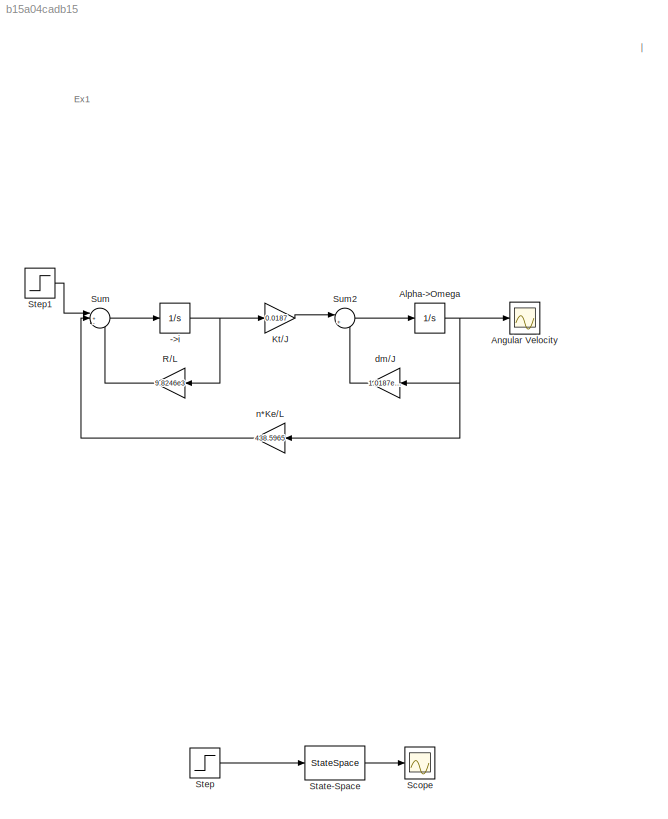
MODEL slx_b15a04cadb15
KIND model
BLOCK [Integrator] ->i
  Ports = [1, 1]
BLOCK [Integrator] Alpha->Omega
  Ports = [1, 1]
BLOCK [Scope] Angular Velocity
  Floating = off
  NumInputPorts = 1
  Ports = [1]
  ShowLegends = off
BLOCK [Gain] Kt//J
  Gain = 0.0187
  OutDataTypeStr = Inherit: Inherit via internal rule
  ParamDataTypeStr = Inherit: Inherit via internal rule
  SaturateOnIntegerOverflow = off
BLOCK [Gain] R//L
  Gain = 9.8246e3
  OutDataTypeStr = Inherit: Inherit via internal rule
  ParamDataTypeStr = Inherit: Inherit via internal rule
  SaturateOnIntegerOverflow = off
BLOCK [Scope] Scope
  Floating = off
  NumInputPorts = 1
  Ports = [1]
  SaveName = ScopeData2
  ShowLegends = off
BLOCK [StateSpace] State-Space
  A = [0,0,-22.4;0,0,0.0187;0,0,0]
  B = [0.2;0;0]
  C = [1,0,0;0,1,0]
  D = [0;0]
  Ports = [1, 1]
  X0 = 0
BLOCK [Step] Step
  SampleTime = 0
BLOCK [Step] Step1
  SampleTime = 0
BLOCK [Sum] Sum
  IconShape = round
  InputSameDT = off
  Inputs = |+--
  OutDataTypeStr = Inherit: Inherit via internal rule
  Ports = [3, 1]
  SaturateOnIntegerOverflow = off
BLOCK [Sum] Sum2
  IconShape = round
  InputSameDT = off
  Inputs = |+-
  OutDataTypeStr = Inherit: Inherit via internal rule
  Ports = [2, 1]
  SaturateOnIntegerOverflow = off
BLOCK [Gain] dm//J
  Gain = 1.0187e-6
  OutDataTypeStr = Inherit: Inherit via internal rule
  ParamDataTypeStr = Inherit: Inherit via internal rule
  SaturateOnIntegerOverflow = off
BLOCK [Gain] n*Ke//L
  Gain = 438.5965
  OutDataTypeStr = Inherit: Inherit via internal rule
  ParamDataTypeStr = Inherit: Inherit via internal rule
  SaturateOnIntegerOverflow = off
ANNOTATION (root): Ex1
ANNOTATION (root): |
NET ->i:1 -> Kt//J:1, R//L:1
NET Alpha->Omega:1 -> Angular Velocity:1, dm//J:1, n*Ke//L:1
LINE Kt//J:1 -> Sum2:1
LINE R//L:1 -> Sum:3
LINE State-Space:1 -> Scope:1
LINE Step1:1 -> Sum:1
LINE Step:1 -> State-Space:1
LINE Sum2:1 -> Alpha->Omega:1
LINE Sum:1 -> ->i:1
LINE dm//J:1 -> Sum2:2
LINE n*Ke//L:1 -> Sum:2
note: NET lines group one-source signal fan-out (src -> all destinations, sorted); 1:1 wires keep LINE
